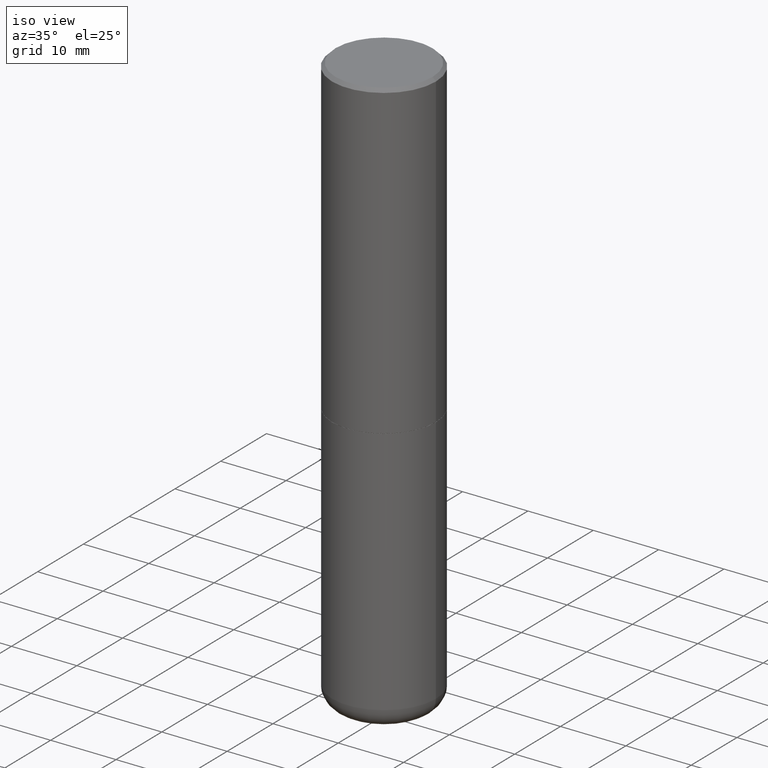
[diagram: clean part render]
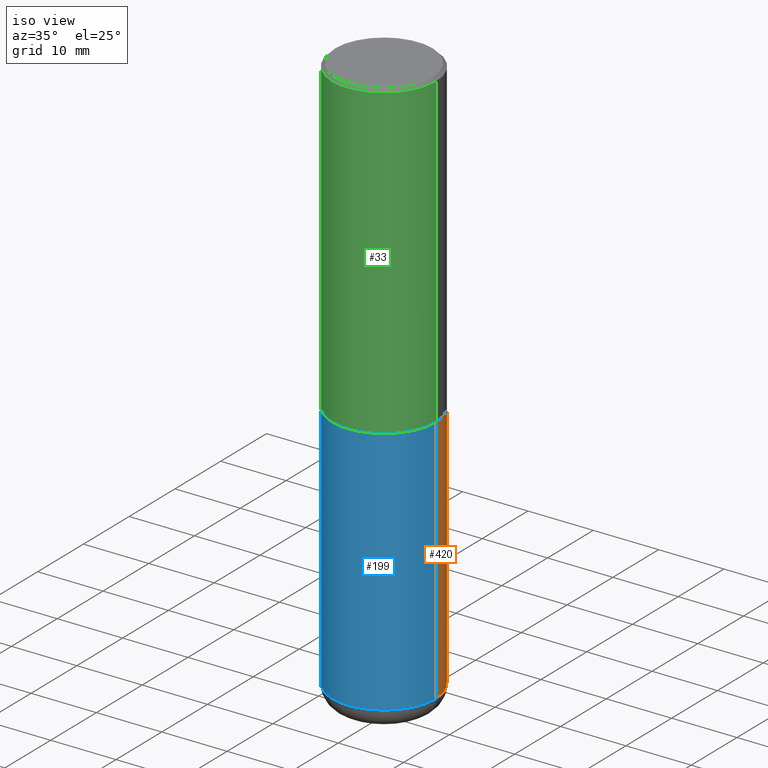
[diagram: same view with three faces highlighted in distinct colors, each labeled with its STEP entity id]
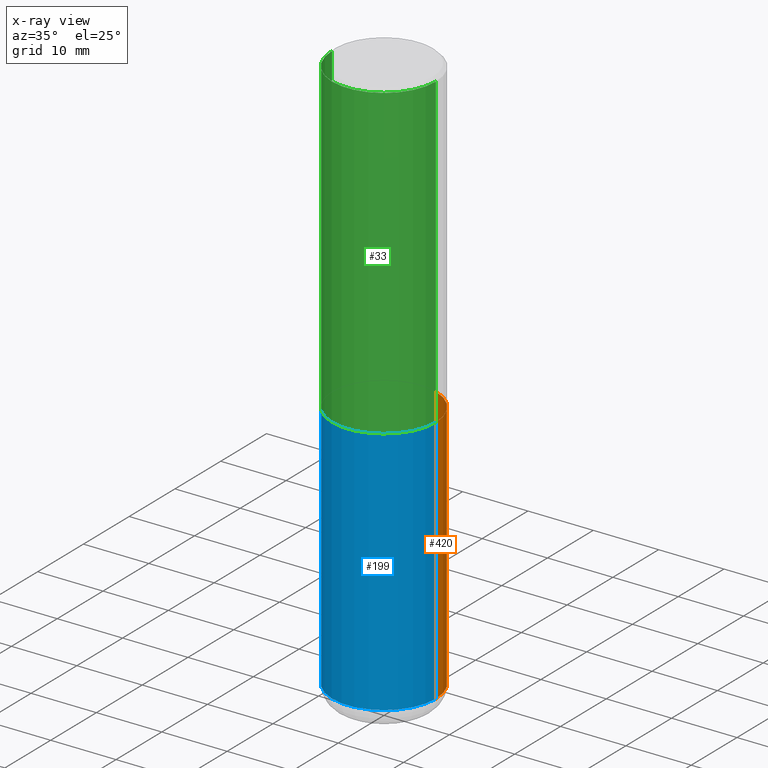
[diagram: x-ray of the same camera — body ghosted, the three highlighted faces saturated]
A machine part, iso view with three faces highlighted in distinct colors.
The next image is the same camera in x-ray (body ghosted, the three faces saturated) — at least one of them is partly hidden behind the body in this view.
Their STEP definitions:

[orange] entity #420 — the highlighted cylindrical surface (partial cylindrical patch) has radius 7.9375 mm, axis along (-0, 0, 1).
#30 = DIRECTION ( 'NONE',  ( -2.445468806185136597E-29, 3.491481338843145583E-15, 1.000000000000000000 ) ) ;
#34 = CARTESIAN_POINT ( 'NONE',  ( 0.3125000000000000000, -1.398339871545609435E-14, -3.380004569232299083 ) ) ;
#41 = ORIENTED_EDGE ( 'NONE', *, *, #241, .T. ) ;
#48 = CARTESIAN_POINT ( 'NONE',  ( 0.3124999999999997224, -8.728703347107853899E-15, -1.874999999999999778 ) ) ;
#57 = ORIENTED_EDGE ( 'NONE', *, *, #428, .T. ) ;
#58 = CARTESIAN_POINT ( 'NONE',  ( -0.3124999999999997224, -6.953429145254704276E-15, -1.874999999999999778 ) ) ;
#71 = CIRCLE ( 'NONE', #208, 0.3125000000000000000 ) ;
#82 = EDGE_CURVE ( 'NONE', #359, #458, #383, .T. ) ;
#97 = VERTEX_POINT ( 'NONE', #421 ) ;
#101 = CARTESIAN_POINT ( 'NONE',  ( 0.000000000000000000, 0.000000000000000000, 0.000000000000000000 ) ) ;
#139 = LINE ( 'NONE', #443, #333 ) ;
#143 = DIRECTION ( 'NONE',  ( -2.445468806185136877E-29, 3.491481338843145188E-15, 1.000000000000000000 ) ) ;
#159 = AXIS2_PLACEMENT_3D ( 'NONE', #299, #376, #258 ) ;
#166 = DIRECTION ( 'NONE',  ( -2.445468806185136877E-29, 3.491481338843145188E-15, 1.000000000000000000 ) ) ;
#208 = AXIS2_PLACEMENT_3D ( 'NONE', #375, #334, #216 ) ;
#216 = DIRECTION ( 'NONE',  ( 1.000000000000000000, -6.982962677686269077E-15, 0.000000000000000000 ) ) ;
#223 = DIRECTION ( 'NONE',  ( 1.000000000000000000, -6.982962677686266711E-15, 4.876176775795935232E-29 ) ) ;
#225 = FACE_OUTER_BOUND ( 'NONE', #288, .T. ) ;
#232 = AXIS2_PLACEMENT_3D ( 'NONE', #101, #30, #223 ) ;
#241 = EDGE_CURVE ( 'NONE', #97, #458, #272, .T. ) ;
#258 = DIRECTION ( 'NONE',  ( 1.000000000000000000, -6.982962677686266711E-15, 0.000000000000000000 ) ) ;
#261 = CYLINDRICAL_SURFACE ( 'NONE', #232, 0.3124999999999998890 ) ;
#272 = LINE ( 'NONE', #469, #274 ) ;
#274 = VECTOR ( 'NONE', #166, 39.37007874015748143 ) ;
#288 = EDGE_LOOP ( 'NONE', ( #57, #41, #315, #290 ) ) ;
#290 = ORIENTED_EDGE ( 'NONE', *, *, #405, .F. ) ;
#299 = CARTESIAN_POINT ( 'NONE',  ( 4.585254011597130558E-29, -6.546527510330897918E-15, -1.874999999999999778 ) ) ;
#315 = ORIENTED_EDGE ( 'NONE', *, *, #82, .F. ) ;
#333 = VECTOR ( 'NONE', #143, 39.37007874015748143 ) ;
#334 = DIRECTION ( 'NONE',  ( -2.445468806185136597E-29, 3.491481338843145583E-15, 1.000000000000000000 ) ) ;
#359 = VERTEX_POINT ( 'NONE', #48 ) ;
#375 = CARTESIAN_POINT ( 'NONE',  ( 8.265695738820817389E-29, -1.180122287867913601E-14, -3.380004569232299083 ) ) ;
#376 = DIRECTION ( 'NONE',  ( -2.445468806185136597E-29, 3.491481338843145583E-15, 1.000000000000000000 ) ) ;
#383 = CIRCLE ( 'NONE', #159, 0.3124999999999997224 ) ;
#405 = EDGE_CURVE ( 'NONE', #411, #359, #139, .T. ) ;
#411 = VERTEX_POINT ( 'NONE', #34 ) ;
#420 = ADVANCED_FACE ( 'NONE', ( #225 ), #261, .T. ) ;
#421 = CARTESIAN_POINT ( 'NONE',  ( -0.3125000000000000000, -6.953429145254701909E-15, -3.380004569232299083 ) ) ;
#428 = EDGE_CURVE ( 'NONE', #411, #97, #71, .T. ) ;
#443 = CARTESIAN_POINT ( 'NONE',  ( 0.3124999999999998890, -2.182175836776957558E-15, 1.523805242436229235E-29 ) ) ;
#458 = VERTEX_POINT ( 'NONE', #58 ) ;
#469 = CARTESIAN_POINT ( 'NONE',  ( -0.3124999999999998890, 2.220446049250312292E-15, -1.537167215704657391E-29 ) ) ;

[blue] entity #199 — the highlighted cylindrical surface (partial cylindrical patch) has radius 7.9375 mm, axis along (-0, 0, 1).
#2 = ORIENTED_EDGE ( 'NONE', *, *, #405, .T. ) ;
#9 = DIRECTION ( 'NONE',  ( 1.000000000000000000, -6.982962677686266711E-15, 4.876176775795935232E-29 ) ) ;
#25 = AXIS2_PLACEMENT_3D ( 'NONE', #464, #313, #238 ) ;
#34 = CARTESIAN_POINT ( 'NONE',  ( 0.3125000000000000000, -1.398339871545609435E-14, -3.380004569232299083 ) ) ;
#37 = ORIENTED_EDGE ( 'NONE', *, *, #241, .F. ) ;
#48 = CARTESIAN_POINT ( 'NONE',  ( 0.3124999999999997224, -8.728703347107853899E-15, -1.874999999999999778 ) ) ;
#58 = CARTESIAN_POINT ( 'NONE',  ( -0.3124999999999997224, -6.953429145254704276E-15, -1.874999999999999778 ) ) ;
#63 = CIRCLE ( 'NONE', #25, 0.3125000000000000000 ) ;
#92 = DIRECTION ( 'NONE',  ( 1.000000000000000000, -6.982962677686266711E-15, 0.000000000000000000 ) ) ;
#97 = VERTEX_POINT ( 'NONE', #421 ) ;
#139 = LINE ( 'NONE', #443, #333 ) ;
#143 = DIRECTION ( 'NONE',  ( -2.445468806185136877E-29, 3.491481338843145188E-15, 1.000000000000000000 ) ) ;
#166 = DIRECTION ( 'NONE',  ( -2.445468806185136877E-29, 3.491481338843145188E-15, 1.000000000000000000 ) ) ;
#171 = EDGE_LOOP ( 'NONE', ( #37, #431, #2, #195 ) ) ;
#195 = ORIENTED_EDGE ( 'NONE', *, *, #368, .F. ) ;
#199 = ADVANCED_FACE ( 'NONE', ( #229 ), #201, .T. ) ;
#201 = CYLINDRICAL_SURFACE ( 'NONE', #490, 0.3124999999999998890 ) ;
#229 = FACE_OUTER_BOUND ( 'NONE', #171, .T. ) ;
#236 = DIRECTION ( 'NONE',  ( -2.445468806185136597E-29, 3.491481338843145583E-15, 1.000000000000000000 ) ) ;
#238 = DIRECTION ( 'NONE',  ( 1.000000000000000000, -6.982962677686269077E-15, 0.000000000000000000 ) ) ;
#241 = EDGE_CURVE ( 'NONE', #97, #458, #272, .T. ) ;
#270 = CIRCLE ( 'NONE', #386, 0.3124999999999997224 ) ;
#272 = LINE ( 'NONE', #469, #274 ) ;
#274 = VECTOR ( 'NONE', #166, 39.37007874015748143 ) ;
#281 = DIRECTION ( 'NONE',  ( -2.445468806185136597E-29, 3.491481338843145583E-15, 1.000000000000000000 ) ) ;
#284 = EDGE_CURVE ( 'NONE', #97, #411, #63, .T. ) ;
#311 = CARTESIAN_POINT ( 'NONE',  ( 4.585254011597130558E-29, -6.546527510330897918E-15, -1.874999999999999778 ) ) ;
#313 = DIRECTION ( 'NONE',  ( -2.445468806185136597E-29, 3.491481338843145583E-15, 1.000000000000000000 ) ) ;
#333 = VECTOR ( 'NONE', #143, 39.37007874015748143 ) ;
#359 = VERTEX_POINT ( 'NONE', #48 ) ;
#368 = EDGE_CURVE ( 'NONE', #458, #359, #270, .T. ) ;
#386 = AXIS2_PLACEMENT_3D ( 'NONE', #311, #281, #92 ) ;
#405 = EDGE_CURVE ( 'NONE', #411, #359, #139, .T. ) ;
#411 = VERTEX_POINT ( 'NONE', #34 ) ;
#421 = CARTESIAN_POINT ( 'NONE',  ( -0.3125000000000000000, -6.953429145254701909E-15, -3.380004569232299083 ) ) ;
#431 = ORIENTED_EDGE ( 'NONE', *, *, #284, .T. ) ;
#443 = CARTESIAN_POINT ( 'NONE',  ( 0.3124999999999998890, -2.182175836776957558E-15, 1.523805242436229235E-29 ) ) ;
#458 = VERTEX_POINT ( 'NONE', #58 ) ;
#461 = CARTESIAN_POINT ( 'NONE',  ( 0.000000000000000000, 0.000000000000000000, 0.000000000000000000 ) ) ;
#464 = CARTESIAN_POINT ( 'NONE',  ( 8.265695738820817389E-29, -1.180122287867913601E-14, -3.380004569232299083 ) ) ;
#469 = CARTESIAN_POINT ( 'NONE',  ( -0.3124999999999998890, 2.220446049250312292E-15, -1.537167215704657391E-29 ) ) ;
#490 = AXIS2_PLACEMENT_3D ( 'NONE', #461, #236, #9 ) ;

[green] entity #33 — the highlighted cylindrical surface (partial cylindrical patch) has radius 7.9375 mm, axis along (-0, 0, 1).
#28 = CARTESIAN_POINT ( 'NONE',  ( -0.3124999999999997224, -1.085986778634146418E-15, -1.873999999999999666 ) ) ;
#33 = ADVANCED_FACE ( 'NONE', ( #180 ), #145, .T. ) ;
#42 = ORIENTED_EDGE ( 'NONE', *, *, #61, .T. ) ;
#61 = EDGE_CURVE ( 'NONE', #384, #448, #293, .T. ) ;
#72 = DIRECTION ( 'NONE',  ( -2.445468806185136877E-29, 3.491481338843145188E-15, 1.000000000000000000 ) ) ;
#73 = VERTEX_POINT ( 'NONE', #28 ) ;
#83 = CARTESIAN_POINT ( 'NONE',  ( -0.3124999999999994449, 2.112346210000091499E-15, -0.02000000000000014960 ) ) ;
#86 = CARTESIAN_POINT ( 'NONE',  ( 4.582808542790944955E-29, -6.543036028992054122E-15, -1.873999999999999666 ) ) ;
#89 = ORIENTED_EDGE ( 'NONE', *, *, #165, .F. ) ;
#104 = CARTESIAN_POINT ( 'NONE',  ( 0.000000000000000000, 0.000000000000000000, 0.000000000000000000 ) ) ;
#108 = DIRECTION ( 'NONE',  ( -2.445468806185136597E-29, 3.491481338843145583E-15, 1.000000000000000000 ) ) ;
#109 = CARTESIAN_POINT ( 'NONE',  ( 4.890937612370309067E-31, -6.982962677686343378E-17, -0.02000000000000014960 ) ) ;
#114 = DIRECTION ( 'NONE',  ( -2.445468806185136597E-29, 3.491481338843145583E-15, 1.000000000000000000 ) ) ;
#129 = ORIENTED_EDGE ( 'NONE', *, *, #317, .T. ) ;
#145 = CYLINDRICAL_SURFACE ( 'NONE', #285, 0.3124999999999996114 ) ;
#152 = DIRECTION ( 'NONE',  ( 1.000000000000000000, -6.982962677686266711E-15, 4.876176775795935232E-29 ) ) ;
#165 = EDGE_CURVE ( 'NONE', #279, #448, #320, .T. ) ;
#180 = FACE_OUTER_BOUND ( 'NONE', #326, .T. ) ;
#192 = VECTOR ( 'NONE', #286, 39.37007874015748143 ) ;
#213 = LINE ( 'NONE', #390, #192 ) ;
#215 = ORIENTED_EDGE ( 'NONE', *, *, #262, .F. ) ;
#253 = CARTESIAN_POINT ( 'NONE',  ( 0.3124999999999997224, -8.725211865769010891E-15, -1.873999999999999666 ) ) ;
#262 = EDGE_CURVE ( 'NONE', #73, #279, #213, .T. ) ;
#266 = DIRECTION ( 'NONE',  ( 1.000000000000000000, -6.982962677686267499E-15, 0.000000000000000000 ) ) ;
#279 = VERTEX_POINT ( 'NONE', #83 ) ;
#285 = AXIS2_PLACEMENT_3D ( 'NONE', #104, #108, #152 ) ;
#286 = DIRECTION ( 'NONE',  ( -2.445468806185136877E-29, 3.491481338843145188E-15, 1.000000000000000000 ) ) ;
#293 = LINE ( 'NONE', #380, #455 ) ;
#316 = DIRECTION ( 'NONE',  ( 1.000000000000000000, -6.982962677686266711E-15, 0.000000000000000000 ) ) ;
#317 = EDGE_CURVE ( 'NONE', #73, #384, #440, .T. ) ;
#319 = DIRECTION ( 'NONE',  ( -2.445468806185136597E-29, 3.491481338843145583E-15, 1.000000000000000000 ) ) ;
#320 = CIRCLE ( 'NONE', #369, 0.3124999999999994449 ) ;
#326 = EDGE_LOOP ( 'NONE', ( #215, #129, #42, #89 ) ) ;
#331 = CARTESIAN_POINT ( 'NONE',  ( 0.3124999999999994449, -2.213735251080463362E-15, -0.02000000000000014960 ) ) ;
#369 = AXIS2_PLACEMENT_3D ( 'NONE', #109, #114, #266 ) ;
#380 = CARTESIAN_POINT ( 'NONE',  ( 0.3124999999999996114, -2.182175836776955586E-15, 1.523805242436227833E-29 ) ) ;
#384 = VERTEX_POINT ( 'NONE', #253 ) ;
#390 = CARTESIAN_POINT ( 'NONE',  ( -0.3124999999999996114, 2.220446049250310320E-15, -1.537167215704655990E-29 ) ) ;
#440 = CIRCLE ( 'NONE', #477, 0.3124999999999997224 ) ;
#448 = VERTEX_POINT ( 'NONE', #331 ) ;
#455 = VECTOR ( 'NONE', #72, 39.37007874015748143 ) ;
#477 = AXIS2_PLACEMENT_3D ( 'NONE', #86, #319, #316 ) ;